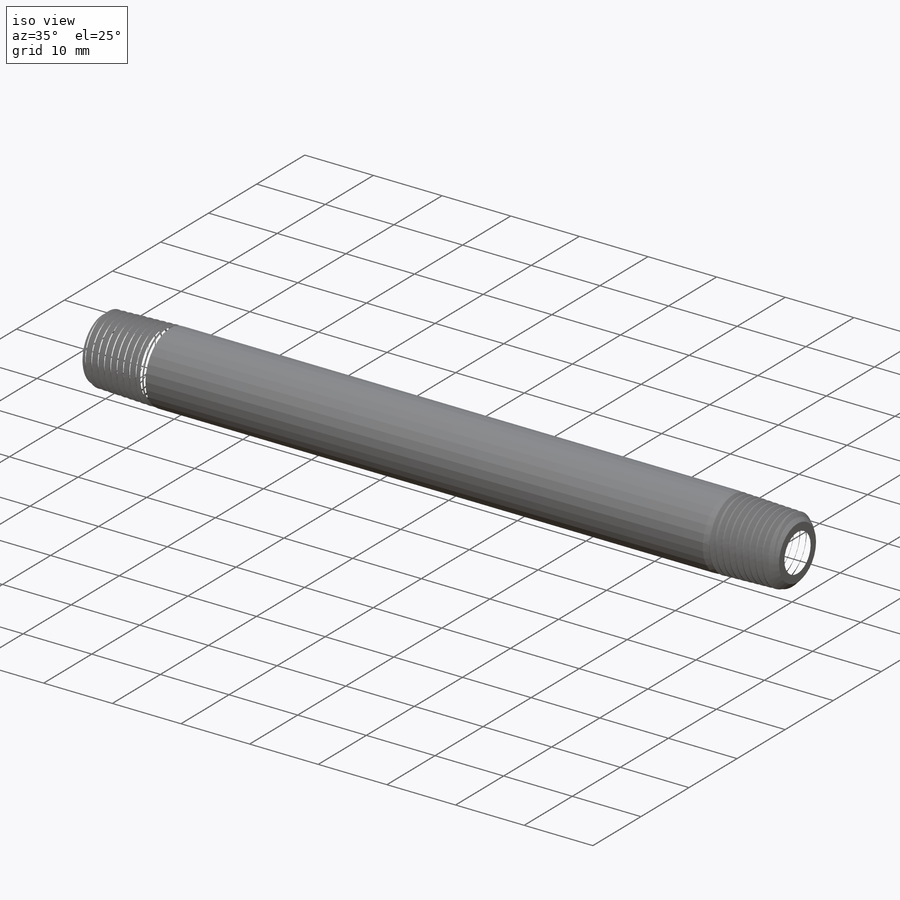
[diagram: iso view]
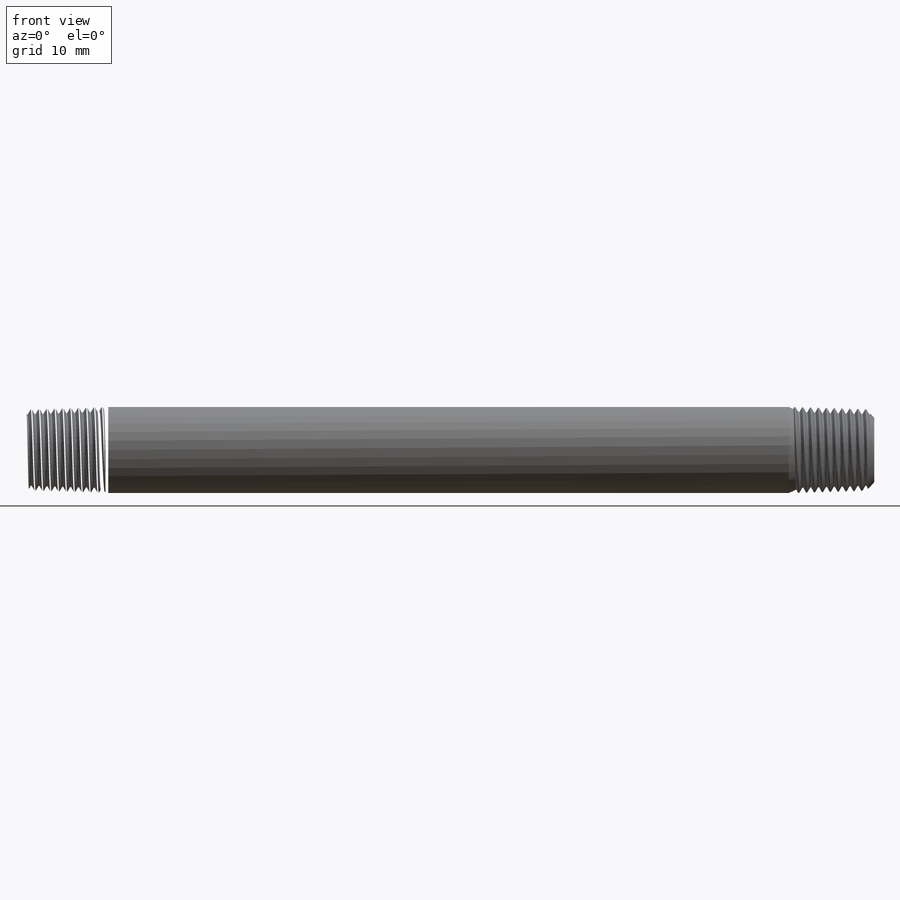
[diagram: front view]
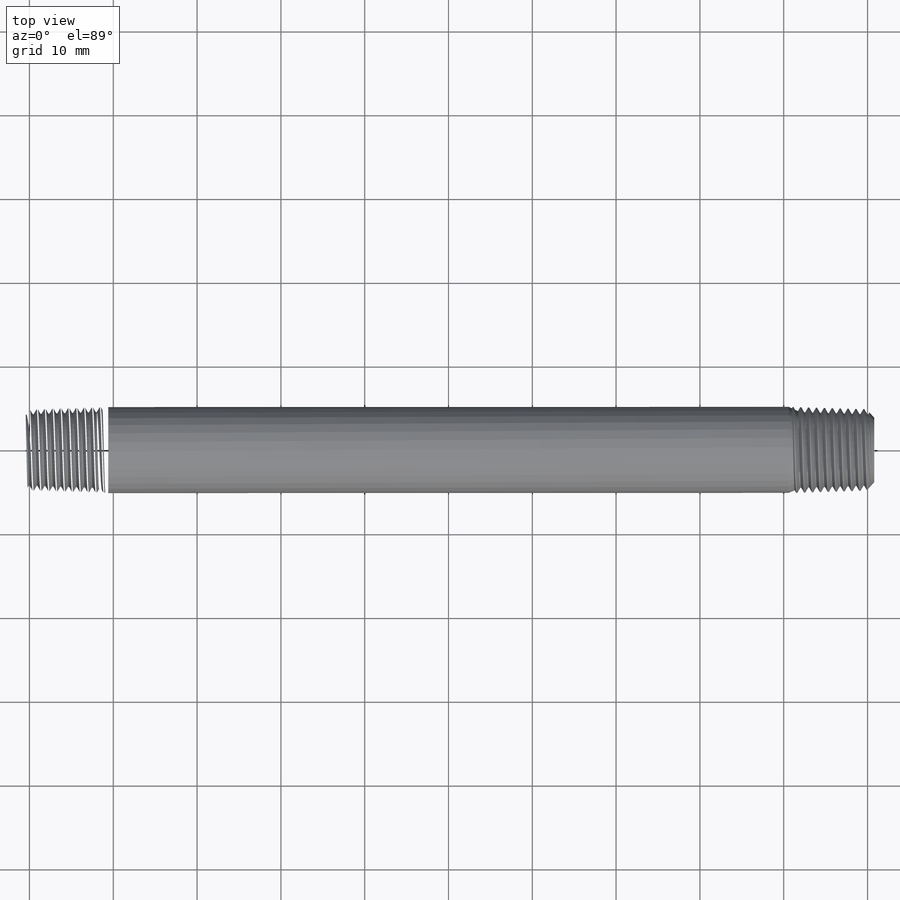
[diagram: top view]
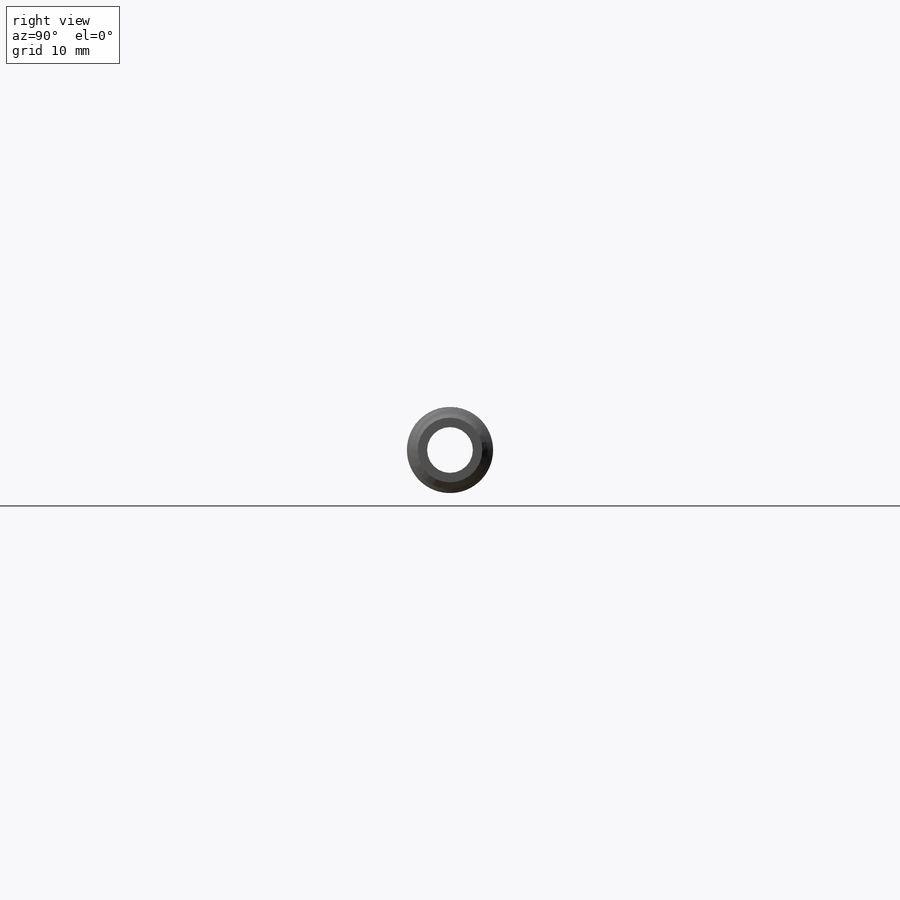
[diagram: right view]
SOLIDWORKS PART (.sldprt)
format: sldprt  version: not decoded by parser v0  size: 1,341,440 bytes
history: native  units: mm
features: sketch x10, extrude x3, cut_extrude x3, material x1, plane x1, helix x1, chamfer x1, sweep x1, pattern_circular x1, boolean_combine x1 (+15 scaffold rows collapsed)
feature tree (38):
  scaffold x15  (default folders/planes/origin — collapsed)
  material  "Material <not specified>"
  sketch  "Sketch1"  dims[c1.pipe od=10.287mm c1.D1=10.287mm c1.D=101.6mm c1.R=~15.10284mm c1.D2=~15.10284mm c1.D3=6.35mm c2.R=~9.96696mm c2.D2=~5.174074mm c2.D3=~9.96696mm]
  plane  "Plane1"
  sketch  "Sketch2"
  extrude  "Extrude1"  [1 undecoded]
  sketch  "Sketch3"
  helix  "Helix/Spiral1"  Pitch=15.04696mm pitch=0.940741mm
  sketch  "Sketch4"  dims[c1.D1=~0.117593mm c1.D2=~0.47037mm c1.D3=~1.174647mm c2.D3=60.0deg c2.D4=~2.778125mm c3.D4=10.0deg c4.D4=~0.823148mm c5.D4=10.0deg]
  sketch  "Sketch5"  dims[ID=5.461mm D1=~1.360714mm]
  chamfer  "Chamfer1"  Distance=0.940741mm Angle=45deg
  sweep  "Cut-Sweep1"
  sketch  "Sketch10"  dims[D1=~9.77265mm]
  cut_extrude  "Cut-Extrude4"  [1 undecoded]
  sketch  "Sketch11"  dims[D1=10.287mm]
  extrude  "Extrude4"  [1 undecoded]
  sketch  "Sketch16"  dims[D1=0.0mm]
  cut_extrude  "Cut-Extrude5"  Depth=0.235185mm
  sketch  "Sketch17"  dims[D1=0.0mm]
  extrude  "Extrude5"  Depth=2.822222mm
  pattern_circular  "CirPattern1"  Count=2 Angle=360deg
  boolean_combine  "Combine1"
  sketch  "Sketch15"  dims[D1=10.287mm D2=5.461mm]
  cut_extrude  "Cut-Extrude3"  [1 undecoded]
decode coverage: 13 of 21 modeling features carry decoded parameters
note: ~ marks probable driven/reference dimensions
note: 4 parameter values undecoded
summary: no parameter record found for 4 features
note: suppression state not decoded; provenance and decode notes live in map.json
